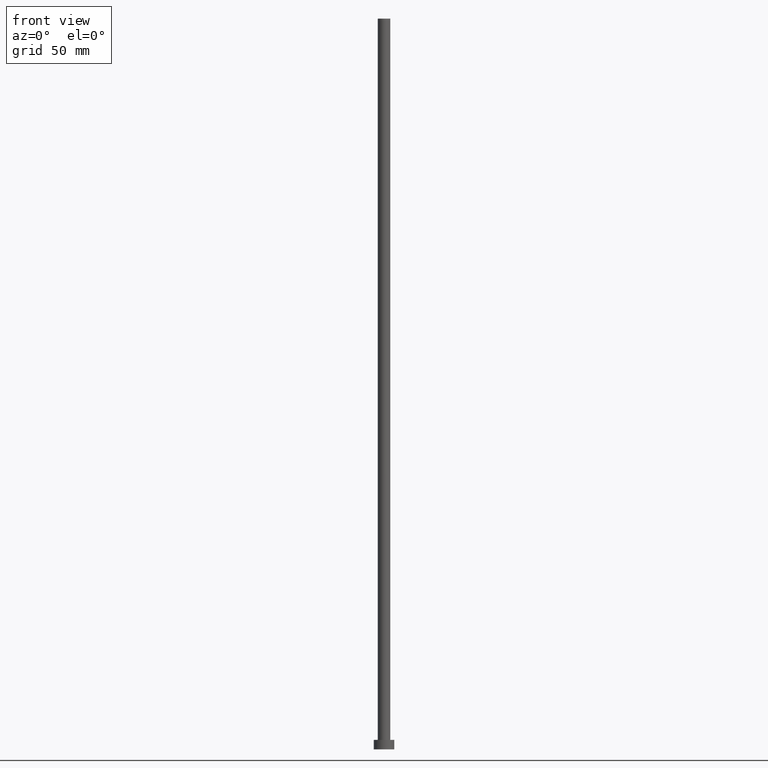
[diagram: clean part render]
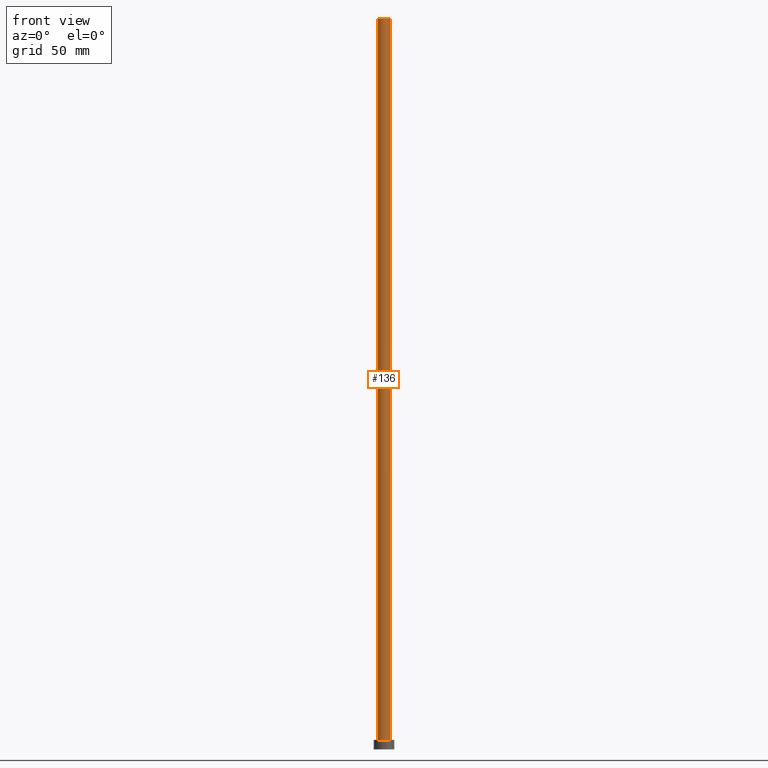
[diagram: same view with one face highlighted and labeled with its STEP entity id]
A machine part, front view. The second image highlights one B-rep face of the part: STEP entity #136.
In plain terms, the highlighted cylindrical surface (edge-blend (fillet) strip) has radius 4.25 mm, axis along (-0, -0, -1).
Its self-contained STEP definition (entity closure, byte-faithful):
#4 = EDGE_CURVE ( 'NONE', #120, #69, #159, .T. ) ;
#11 = DIRECTION ( 'NONE',  ( 1.000000000000000000, 0.000000000000000000, 0.000000000000000000 ) ) ;
#13 = CARTESIAN_POINT ( 'NONE',  ( 4.250000000000000000, 5.204748896376250699E-16, 500.0000000000000000 ) ) ;
#14 = CARTESIAN_POINT ( 'NONE',  ( -4.250000000000000000, 0.000000000000000000, 6.500000000000000000 ) ) ;
#19 = AXIS2_PLACEMENT_3D ( 'NONE', #113, #193, #184 ) ;
#42 = CARTESIAN_POINT ( 'NONE',  ( 4.250000000000000000, 5.204748896376250699E-16, 500.0000000000000000 ) ) ;
#46 = EDGE_CURVE ( 'NONE', #120, #253, #67, .T. ) ;
#61 = ORIENTED_EDGE ( 'NONE', *, *, #46, .T. ) ;
#66 = VECTOR ( 'NONE', #204, 1000.000000000000000 ) ;
#67 = LINE ( 'NONE', #230, #216 ) ;
#69 = VERTEX_POINT ( 'NONE', #13 ) ;
#71 = CARTESIAN_POINT ( 'NONE',  ( 0.000000000000000000, 0.000000000000000000, 500.0000000000000000 ) ) ;
#75 = AXIS2_PLACEMENT_3D ( 'NONE', #71, #202, #205 ) ;
#99 = CIRCLE ( 'NONE', #129, 4.250000000000000000 ) ;
#105 = CYLINDRICAL_SURFACE ( 'NONE', #19, 4.250000000000000000 ) ;
#112 = LINE ( 'NONE', #42, #66 ) ;
#113 = CARTESIAN_POINT ( 'NONE',  ( 0.000000000000000000, 0.000000000000000000, 500.0000000000000000 ) ) ;
#116 = EDGE_CURVE ( 'NONE', #69, #154, #112, .T. ) ;
#120 = VERTEX_POINT ( 'NONE', #142 ) ;
#124 = DIRECTION ( 'NONE',  ( -0.000000000000000000, -0.000000000000000000, -1.000000000000000000 ) ) ;
#129 = AXIS2_PLACEMENT_3D ( 'NONE', #141, #224, #11 ) ;
#136 = ADVANCED_FACE ( 'NONE', ( #194 ), #105, .T. ) ;
#141 = CARTESIAN_POINT ( 'NONE',  ( 0.000000000000000000, 0.000000000000000000, 6.500000000000000000 ) ) ;
#142 = CARTESIAN_POINT ( 'NONE',  ( -4.250000000000000000, 0.000000000000000000, 500.0000000000000000 ) ) ;
#144 = EDGE_CURVE ( 'NONE', #253, #154, #99, .T. ) ;
#154 = VERTEX_POINT ( 'NONE', #254 ) ;
#159 = CIRCLE ( 'NONE', #75, 4.250000000000000000 ) ;
#184 = DIRECTION ( 'NONE',  ( -1.000000000000000000, 0.000000000000000000, 0.000000000000000000 ) ) ;
#193 = DIRECTION ( 'NONE',  ( -0.000000000000000000, -0.000000000000000000, -1.000000000000000000 ) ) ;
#194 = FACE_OUTER_BOUND ( 'NONE', #225, .T. ) ;
#202 = DIRECTION ( 'NONE',  ( 0.000000000000000000, 0.000000000000000000, 1.000000000000000000 ) ) ;
#204 = DIRECTION ( 'NONE',  ( -0.000000000000000000, -0.000000000000000000, -1.000000000000000000 ) ) ;
#205 = DIRECTION ( 'NONE',  ( 1.000000000000000000, 0.000000000000000000, 0.000000000000000000 ) ) ;
#206 = ORIENTED_EDGE ( 'NONE', *, *, #4, .F. ) ;
#216 = VECTOR ( 'NONE', #124, 1000.000000000000000 ) ;
#224 = DIRECTION ( 'NONE',  ( 0.000000000000000000, 0.000000000000000000, 1.000000000000000000 ) ) ;
#225 = EDGE_LOOP ( 'NONE', ( #247, #206, #61, #244 ) ) ;
#230 = CARTESIAN_POINT ( 'NONE',  ( -4.250000000000000000, 0.000000000000000000, 500.0000000000000000 ) ) ;
#244 = ORIENTED_EDGE ( 'NONE', *, *, #144, .T. ) ;
#247 = ORIENTED_EDGE ( 'NONE', *, *, #116, .F. ) ;
#253 = VERTEX_POINT ( 'NONE', #14 ) ;
#254 = CARTESIAN_POINT ( 'NONE',  ( 4.250000000000000000, 5.204748896376250699E-16, 6.500000000000000000 ) ) ;